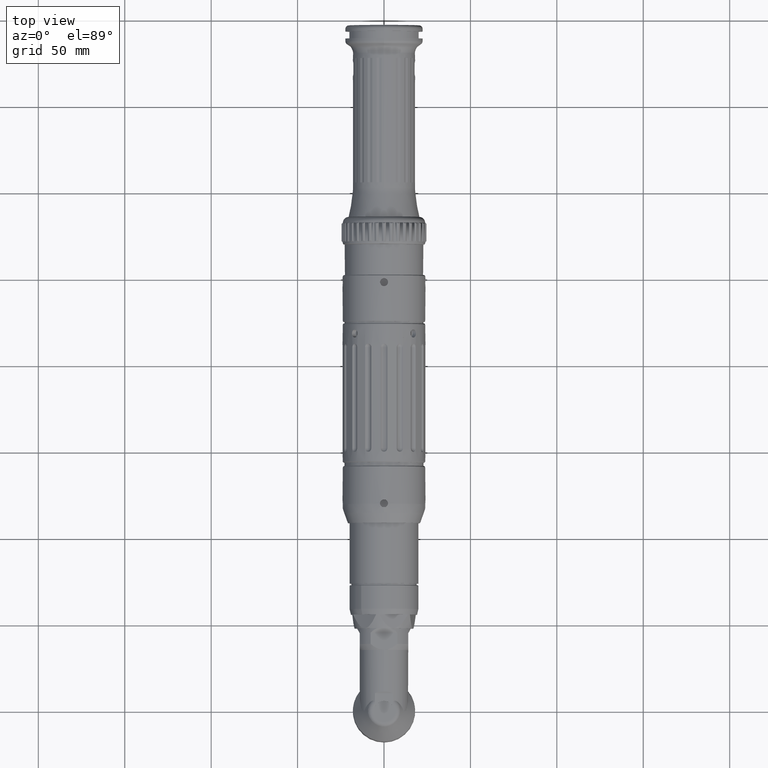
[diagram: clean part render]
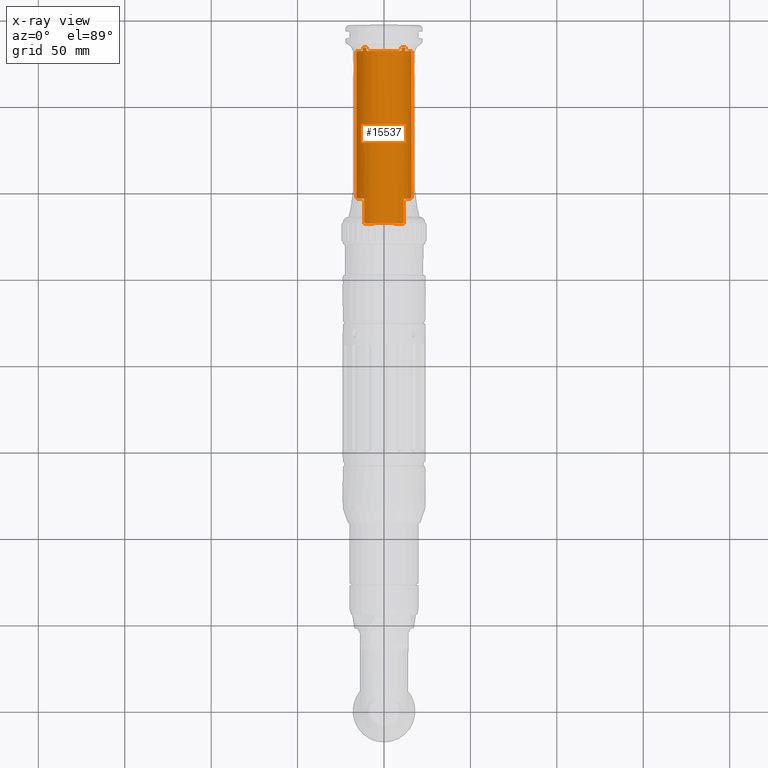
[diagram: x-ray — body ghosted, one internal face saturated and labeled with its STEP entity id]
A machine part, top view, then the same camera in x-ray: the body is ghosted and one INTERNAL B-rep face — a face not visible from any outside direction — is saturated and labeled: STEP entity #15537.
In plain terms, the highlighted cylindrical surface (bore or boss wall) has radius 16 mm, axis along (0, -1, -0).
Its self-contained STEP definition (entity closure, byte-faithful):
#102=ELLIPSE('',#16172,102.279251543994,16.);
#104=ELLIPSE('',#16174,102.279251543994,16.);
#140=ELLIPSE('',#16923,102.279251543994,16.);
#141=ELLIPSE('',#16924,102.279251543994,16.);
#334=B_SPLINE_CURVE_WITH_KNOTS('',3,(#22875,#22876,#22877,#22878,#22879,
#22880),.UNSPECIFIED.,.F.,.F.,(4,2,4),(1.60575531335487,1.70750990164224,
1.79006707795033),.UNSPECIFIED.);
#344=B_SPLINE_CURVE_WITH_KNOTS('',3,(#23152,#23153,#23154,#23155,#23156,
#23157),.UNSPECIFIED.,.F.,.F.,(4,2,4),(3.57354557210698,4.0081455047235,
4.44274543733987),.UNSPECIFIED.);
#345=B_SPLINE_CURVE_WITH_KNOTS('',3,(#23165,#23166,#23167,#23168,#23169,
#23170),.UNSPECIFIED.,.F.,.F.,(4,2,4),(-0.150361344986723,-0.111047292004061,
-0.0884233934386271),.UNSPECIFIED.);
#347=B_SPLINE_CURVE_WITH_KNOTS('',3,(#23215,#23216,#23217,#23218,#23219,
#23220,#23221,#23222,#23223,#23224),.UNSPECIFIED.,.F.,.F.,(4,2,2,2,4),(0.,
0.0381531620908622,0.0763063241817243,0.115442240555568,0.154578156929411),
 .UNSPECIFIED.);
#348=B_SPLINE_CURVE_WITH_KNOTS('',3,(#23236,#23237,#23238,#23239,#23240,
#23241,#23242,#23243,#23244,#23245),.UNSPECIFIED.,.F.,.F.,(4,2,2,2,4),(-0.154578156929414,
-0.11544224055557,-0.0763063241817251,-0.0381531620908626,0.),
 .UNSPECIFIED.);
#349=B_SPLINE_CURVE_WITH_KNOTS('',3,(#23293,#23294,#23295,#23296,#23297,
#23298,#23299,#23300,#23301,#23302),.UNSPECIFIED.,.F.,.F.,(4,2,2,2,4),(0.934707650493438,
1.05123163150248,1.16775561251153,1.28867704578371,1.40959847905589),
 .UNSPECIFIED.);
#353=B_SPLINE_CURVE_WITH_KNOTS('',3,(#23335,#23336,#23337,#23338,#23339,
#23340,#23341,#23342,#23343,#23344),.UNSPECIFIED.,.F.,.F.,(4,2,2,2,4),(-0.47484788603311,
-0.350995445796024,-0.227143005558937,-0.113571502779469,0.),
 .UNSPECIFIED.);
#409=B_SPLINE_CURVE_WITH_KNOTS('',3,(#24925,#24926,#24927,#24928,#24929,
#24930,#24931,#24932,#24933,#24934,#24935,#24936,#24937,#24938,#24939,#24940,
#24941,#24942,#24943,#24944,#24945,#24946,#24947,#24948,#24949,#24950,#24951,
#24952,#24953,#24954,#24955,#24956,#24957,#24958),.UNSPECIFIED.,.T.,.F.,
(4,2,2,2,2,2,2,2,2,2,2,2,2,2,2,2,4),(0.,0.0754224115710585,0.150844823142117,
0.226266604627874,0.301688386113631,0.377110167599387,0.452531949085144,
0.527954360656203,0.603376772227261,0.678799183798319,0.754221595369378,
0.829643376855136,0.905065158340895,0.980486939826654,1.05590872131241,
1.13133113288347,1.20675354445453),.UNSPECIFIED.);
#410=B_SPLINE_CURVE_WITH_KNOTS('',3,(#25147,#25148,#25149,#25150,#25151,
#25152,#25153,#25154,#25155,#25156,#25157,#25158,#25159,#25160,#25161,#25162,
#25163,#25164,#25165,#25166,#25167,#25168,#25169,#25170,#25171,#25172,#25173,
#25174,#25175,#25176,#25177,#25178,#25179,#25180),.UNSPECIFIED.,.T.,.F.,
(4,2,2,2,2,2,2,2,2,2,2,2,2,2,2,2,4),(0.,0.0754224115710584,0.150844823142117,
0.226266604627875,0.301688386113634,0.377110167599393,0.452531949085151,
0.52795436065621,0.603376772227268,0.678799183798327,0.754221595369385,
0.829643376855142,0.905065158340899,0.980486939826655,1.05590872131241,
1.13133113288347,1.20675354445453),.UNSPECIFIED.);
#411=B_SPLINE_CURVE_WITH_KNOTS('',3,(#25364,#25365,#25366,#25367,#25368,
#25369,#25370,#25371,#25372,#25373,#25374,#25375,#25376,#25377,#25378,#25379,
#25380,#25381,#25382,#25383,#25384,#25385,#25386,#25387,#25388,#25389,#25390,
#25391,#25392,#25393,#25394,#25395,#25396,#25397),.UNSPECIFIED.,.T.,.F.,
(4,2,2,2,2,2,2,2,2,2,2,2,2,2,2,2,4),(0.,0.0754224115710585,0.150844823142117,
0.226266604627873,0.30168838611363,0.377110167599387,0.452531949085144,
0.527954360656202,0.603376772227261,0.678799183798319,0.754221595369378,
0.829643376855137,0.905065158340896,0.980486939826654,1.05590872131241,
1.13133113288347,1.20675354445453),.UNSPECIFIED.);
#412=B_SPLINE_CURVE_WITH_KNOTS('',3,(#25633,#25634,#25635,#25636,#25637,
#25638),.UNSPECIFIED.,.F.,.F.,(4,2,4),(-0.0622957377690027,-0.0428726460111262,
-0.00023460614208895),.UNSPECIFIED.);
#415=B_SPLINE_CURVE_WITH_KNOTS('',3,(#25795,#25796,#25797,#25798,#25799,
#25800,#25801,#25802,#25803,#25804),.UNSPECIFIED.,.F.,.F.,(4,2,2,2,4),(-0.389804153258447,
-0.289329935856943,-0.18885571845544,-0.0944278592277199,0.),
 .UNSPECIFIED.);
#418=B_SPLINE_CURVE_WITH_KNOTS('',3,(#25927,#25928,#25929,#25930,#25931,
#25932,#25933,#25934,#25935,#25936),.UNSPECIFIED.,.F.,.F.,(4,2,2,2,4),(0.,
0.0961295553740424,0.192259110748085,0.291039373597876,0.389819636447666),
 .UNSPECIFIED.);
#421=B_SPLINE_CURVE_WITH_KNOTS('',3,(#26053,#26054,#26055,#26056,#26057,
#26058),.UNSPECIFIED.,.F.,.F.,(4,2,4),(3.7317463950236,4.13768239848054,
4.54361840193748),.UNSPECIFIED.);
#422=B_SPLINE_CURVE_WITH_KNOTS('',3,(#26117,#26118,#26119,#26120),
 .UNSPECIFIED.,.F.,.F.,(4,4),(-0.183481887365558,0.),.UNSPECIFIED.);
#1147=FACE_BOUND('',#4524,.T.);
#1148=FACE_BOUND('',#4525,.T.);
#1149=FACE_BOUND('',#4526,.T.);
#1150=FACE_BOUND('',#4527,.T.);
#1151=FACE_BOUND('',#4528,.T.);
#1152=FACE_BOUND('',#4529,.T.);
#1153=FACE_BOUND('',#4530,.T.);
#1154=FACE_BOUND('',#4531,.T.);
#1155=FACE_BOUND('',#4532,.T.);
#1156=FACE_BOUND('',#4533,.T.);
#1332=LINE('',#23188,#2199);
#1333=LINE('',#23192,#2200);
#1334=LINE('',#23197,#2201);
#1335=LINE('',#23201,#2202);
#1336=LINE('',#23206,#2203);
#1345=LINE('',#23251,#2212);
#1352=LINE('',#23274,#2219);
#1355=LINE('',#23285,#2222);
#1364=LINE('',#23371,#2231);
#1606=LINE('',#25600,#2473);
#1635=LINE('',#26111,#2502);
#1636=LINE('',#26116,#2503);
#1637=LINE('',#26123,#2504);
#1638=LINE('',#26127,#2505);
#1639=LINE('',#26131,#2506);
#1640=LINE('',#26135,#2507);
#1641=LINE('',#26139,#2508);
#1642=LINE('',#26143,#2509);
#1643=LINE('',#26147,#2510);
#1644=LINE('',#26151,#2511);
#2199=VECTOR('',#18227,10.);
#2200=VECTOR('',#18230,10.);
#2201=VECTOR('',#18235,10.);
#2202=VECTOR('',#18238,10.);
#2203=VECTOR('',#18243,10.);
#2212=VECTOR('',#18266,10.);
#2219=VECTOR('',#18285,10.);
#2222=VECTOR('',#18290,10.);
#2231=VECTOR('',#18311,10.);
#2473=VECTOR('',#19927,10.);
#2502=VECTOR('',#20114,10.);
#2503=VECTOR('',#20119,10.);
#2504=VECTOR('',#20120,10.);
#2505=VECTOR('',#20123,10.);
#2506=VECTOR('',#20126,10.);
#2507=VECTOR('',#20129,10.);
#2508=VECTOR('',#20132,10.);
#2509=VECTOR('',#20135,10.);
#2510=VECTOR('',#20138,10.);
#2511=VECTOR('',#20141,10.);
#3440=FACE_OUTER_BOUND('',#4523,.T.);
#4523=EDGE_LOOP('',(#11434,#11435,#11436,#11437,#11438,#11439,#11440,#11441,
#11442,#11443,#11444,#11445));
#4524=EDGE_LOOP('',(#11446,#11447,#11448,#11449,#11450,#11451,#11452,#11453,
#11454,#11455,#11456,#11457,#11458,#11459,#11460,#11461));
#4525=EDGE_LOOP('',(#11462));
#4526=EDGE_LOOP('',(#11463));
#4527=EDGE_LOOP('',(#11464));
#4528=EDGE_LOOP('',(#11465,#11466,#11467,#11468,#11469,#11470));
#4529=EDGE_LOOP('',(#11471,#11472));
#4530=EDGE_LOOP('',(#11473,#11474));
#4531=EDGE_LOOP('',(#11475,#11476));
#4532=EDGE_LOOP('',(#11477,#11478));
#4533=EDGE_LOOP('',(#11479,#11480,#11481,#11482,#11483,#11484,#11485,#11486,
#11487,#11488,#11489,#11490));
#5214=CIRCLE('',#16089,16.);
#5251=CIRCLE('',#16166,16.);
#5253=CIRCLE('',#16179,16.);
#5631=CIRCLE('',#16907,16.);
#5645=CIRCLE('',#16949,16.);
#5646=CIRCLE('',#16950,16.);
#5647=CIRCLE('',#16951,16.);
#5648=CIRCLE('',#16952,16.);
#5649=CIRCLE('',#16953,16.);
#5650=CIRCLE('',#16954,16.);
#5651=CIRCLE('',#16955,16.);
#5652=CIRCLE('',#16956,16.);
#5653=CIRCLE('',#16957,16.);
#5654=CIRCLE('',#16958,16.);
#6136=VERTEX_POINT('',#22842);
#6137=VERTEX_POINT('',#22844);
#6147=VERTEX_POINT('',#22873);
#6194=VERTEX_POINT('',#23150);
#6195=VERTEX_POINT('',#23151);
#6198=VERTEX_POINT('',#23164);
#6201=VERTEX_POINT('',#23186);
#6202=VERTEX_POINT('',#23187);
#6203=VERTEX_POINT('',#23189);
#6204=VERTEX_POINT('',#23191);
#6205=VERTEX_POINT('',#23195);
#6206=VERTEX_POINT('',#23196);
#6207=VERTEX_POINT('',#23198);
#6208=VERTEX_POINT('',#23200);
#6209=VERTEX_POINT('',#23204);
#6210=VERTEX_POINT('',#23205);
#6213=VERTEX_POINT('',#23214);
#6215=VERTEX_POINT('',#23229);
#6217=VERTEX_POINT('',#23235);
#6219=VERTEX_POINT('',#23250);
#6223=VERTEX_POINT('',#23260);
#6227=VERTEX_POINT('',#23268);
#6228=VERTEX_POINT('',#23272);
#6229=VERTEX_POINT('',#23273);
#6232=VERTEX_POINT('',#23283);
#6233=VERTEX_POINT('',#23284);
#6236=VERTEX_POINT('',#23292);
#6241=VERTEX_POINT('',#23328);
#6243=VERTEX_POINT('',#23334);
#6248=VERTEX_POINT('',#23370);
#6560=VERTEX_POINT('',#24924);
#6621=VERTEX_POINT('',#25146);
#6680=VERTEX_POINT('',#25363);
#6747=VERTEX_POINT('',#25599);
#6759=VERTEX_POINT('',#25632);
#6771=VERTEX_POINT('',#25794);
#6779=VERTEX_POINT('',#25873);
#6782=VERTEX_POINT('',#26052);
#6794=VERTEX_POINT('',#26110);
#6795=VERTEX_POINT('',#26113);
#6796=VERTEX_POINT('',#26115);
#6797=VERTEX_POINT('',#26121);
#6798=VERTEX_POINT('',#26122);
#6799=VERTEX_POINT('',#26124);
#6800=VERTEX_POINT('',#26126);
#6801=VERTEX_POINT('',#26128);
#6802=VERTEX_POINT('',#26130);
#6803=VERTEX_POINT('',#26132);
#6804=VERTEX_POINT('',#26134);
#6805=VERTEX_POINT('',#26136);
#6806=VERTEX_POINT('',#26138);
#6807=VERTEX_POINT('',#26140);
#6808=VERTEX_POINT('',#26142);
#6809=VERTEX_POINT('',#26144);
#6810=VERTEX_POINT('',#26146);
#6811=VERTEX_POINT('',#26148);
#6812=VERTEX_POINT('',#26150);
#7555=EDGE_CURVE('',#6137,#6136,#5214,.T.);
#7569=EDGE_CURVE('',#6147,#6136,#334,.T.);
#7635=EDGE_CURVE('',#6194,#6195,#344,.T.);
#7639=EDGE_CURVE('',#6195,#6198,#345,.T.);
#7643=EDGE_CURVE('',#6201,#6202,#1332,.T.);
#7645=EDGE_CURVE('',#6204,#6203,#1333,.T.);
#7647=EDGE_CURVE('',#6205,#6206,#1334,.T.);
#7649=EDGE_CURVE('',#6208,#6207,#1335,.T.);
#7651=EDGE_CURVE('',#6209,#6210,#1336,.T.);
#7656=EDGE_CURVE('',#6210,#6213,#347,.T.);
#7659=EDGE_CURVE('',#6213,#6215,#5251,.T.);
#7662=EDGE_CURVE('',#6215,#6217,#348,.T.);
#7665=EDGE_CURVE('',#6217,#6219,#1345,.T.);
#7670=EDGE_CURVE('',#6198,#6223,#102,.T.);
#7675=EDGE_CURVE('',#6227,#6209,#104,.T.);
#7676=EDGE_CURVE('',#6228,#6229,#1352,.T.);
#7680=EDGE_CURVE('',#6232,#6233,#1355,.T.);
#7684=EDGE_CURVE('',#6233,#6236,#349,.T.);
#7690=EDGE_CURVE('',#6236,#6241,#5253,.T.);
#7693=EDGE_CURVE('',#6241,#6243,#353,.T.);
#7699=EDGE_CURVE('',#6243,#6248,#1364,.T.);
#8125=EDGE_CURVE('',#6560,#6560,#409,.T.);
#8216=EDGE_CURVE('',#6621,#6621,#410,.T.);
#8305=EDGE_CURVE('',#6680,#6680,#411,.T.);
#8402=EDGE_CURVE('',#6747,#6227,#1606,.T.);
#8416=EDGE_CURVE('',#6759,#6194,#412,.T.);
#8438=EDGE_CURVE('',#6229,#6771,#415,.F.);
#8451=EDGE_CURVE('',#6779,#6771,#5631,.T.);
#8457=EDGE_CURVE('',#6779,#6747,#418,.F.);
#8466=EDGE_CURVE('',#6223,#6782,#421,.T.);
#8468=EDGE_CURVE('',#6782,#6759,#140,.T.);
#8469=EDGE_CURVE('',#6219,#6228,#141,.T.);
#8492=EDGE_CURVE('',#6794,#6147,#1635,.T.);
#8493=EDGE_CURVE('',#6794,#6248,#5645,.T.);
#8494=EDGE_CURVE('',#6232,#6795,#5646,.T.);
#8495=EDGE_CURVE('',#6796,#6795,#1636,.T.);
#8496=EDGE_CURVE('',#6137,#6796,#422,.T.);
#8497=EDGE_CURVE('',#6797,#6798,#1637,.T.);
#8498=EDGE_CURVE('',#6799,#6797,#5647,.T.);
#8499=EDGE_CURVE('',#6799,#6800,#1638,.T.);
#8500=EDGE_CURVE('',#6801,#6800,#5648,.T.);
#8501=EDGE_CURVE('',#6802,#6801,#1639,.T.);
#8502=EDGE_CURVE('',#6803,#6802,#5649,.T.);
#8503=EDGE_CURVE('',#6803,#6804,#1640,.T.);
#8504=EDGE_CURVE('',#6805,#6804,#5650,.T.);
#8505=EDGE_CURVE('',#6806,#6805,#1641,.T.);
#8506=EDGE_CURVE('',#6807,#6806,#5651,.T.);
#8507=EDGE_CURVE('',#6807,#6808,#1642,.T.);
#8508=EDGE_CURVE('',#6809,#6808,#5652,.T.);
#8509=EDGE_CURVE('',#6810,#6809,#1643,.T.);
#8510=EDGE_CURVE('',#6811,#6810,#5653,.T.);
#8511=EDGE_CURVE('',#6811,#6812,#1644,.T.);
#8512=EDGE_CURVE('',#6798,#6812,#5654,.T.);
#11434=ORIENTED_EDGE('',*,*,#7555,.T.);
#11435=ORIENTED_EDGE('',*,*,#7569,.F.);
#11436=ORIENTED_EDGE('',*,*,#8492,.F.);
#11437=ORIENTED_EDGE('',*,*,#8493,.T.);
#11438=ORIENTED_EDGE('',*,*,#7699,.F.);
#11439=ORIENTED_EDGE('',*,*,#7693,.F.);
#11440=ORIENTED_EDGE('',*,*,#7690,.F.);
#11441=ORIENTED_EDGE('',*,*,#7684,.F.);
#11442=ORIENTED_EDGE('',*,*,#7680,.F.);
#11443=ORIENTED_EDGE('',*,*,#8494,.T.);
#11444=ORIENTED_EDGE('',*,*,#8495,.F.);
#11445=ORIENTED_EDGE('',*,*,#8496,.F.);
#11446=ORIENTED_EDGE('',*,*,#8497,.F.);
#11447=ORIENTED_EDGE('',*,*,#8498,.F.);
#11448=ORIENTED_EDGE('',*,*,#8499,.T.);
#11449=ORIENTED_EDGE('',*,*,#8500,.F.);
#11450=ORIENTED_EDGE('',*,*,#8501,.F.);
#11451=ORIENTED_EDGE('',*,*,#8502,.F.);
#11452=ORIENTED_EDGE('',*,*,#8503,.T.);
#11453=ORIENTED_EDGE('',*,*,#8504,.F.);
#11454=ORIENTED_EDGE('',*,*,#8505,.F.);
#11455=ORIENTED_EDGE('',*,*,#8506,.F.);
#11456=ORIENTED_EDGE('',*,*,#8507,.T.);
#11457=ORIENTED_EDGE('',*,*,#8508,.F.);
#11458=ORIENTED_EDGE('',*,*,#8509,.F.);
#11459=ORIENTED_EDGE('',*,*,#8510,.F.);
#11460=ORIENTED_EDGE('',*,*,#8511,.T.);
#11461=ORIENTED_EDGE('',*,*,#8512,.F.);
#11462=ORIENTED_EDGE('',*,*,#8305,.F.);
#11463=ORIENTED_EDGE('',*,*,#8125,.F.);
#11464=ORIENTED_EDGE('',*,*,#8216,.F.);
#11465=ORIENTED_EDGE('',*,*,#8466,.F.);
#11466=ORIENTED_EDGE('',*,*,#7670,.F.);
#11467=ORIENTED_EDGE('',*,*,#7639,.F.);
#11468=ORIENTED_EDGE('',*,*,#7635,.F.);
#11469=ORIENTED_EDGE('',*,*,#8416,.F.);
#11470=ORIENTED_EDGE('',*,*,#8468,.F.);
#11471=ORIENTED_EDGE('',*,*,#7643,.T.);
#11472=ORIENTED_EDGE('',*,*,#7643,.F.);
#11473=ORIENTED_EDGE('',*,*,#7645,.T.);
#11474=ORIENTED_EDGE('',*,*,#7645,.F.);
#11475=ORIENTED_EDGE('',*,*,#7647,.T.);
#11476=ORIENTED_EDGE('',*,*,#7647,.F.);
#11477=ORIENTED_EDGE('',*,*,#7649,.T.);
#11478=ORIENTED_EDGE('',*,*,#7649,.F.);
#11479=ORIENTED_EDGE('',*,*,#8402,.F.);
#11480=ORIENTED_EDGE('',*,*,#8457,.F.);
#11481=ORIENTED_EDGE('',*,*,#8451,.T.);
#11482=ORIENTED_EDGE('',*,*,#8438,.F.);
#11483=ORIENTED_EDGE('',*,*,#7676,.F.);
#11484=ORIENTED_EDGE('',*,*,#8469,.F.);
#11485=ORIENTED_EDGE('',*,*,#7665,.F.);
#11486=ORIENTED_EDGE('',*,*,#7662,.F.);
#11487=ORIENTED_EDGE('',*,*,#7659,.F.);
#11488=ORIENTED_EDGE('',*,*,#7656,.F.);
#11489=ORIENTED_EDGE('',*,*,#7651,.F.);
#11490=ORIENTED_EDGE('',*,*,#7675,.F.);
#14075=CYLINDRICAL_SURFACE('',#16948,16.);
#15537=ADVANCED_FACE('',(#3440,#1147,#1148,#1149,#1150,#1151,#1152,#1153,
#1154,#1155,#1156),#14075,.T.);
#16089=AXIS2_PLACEMENT_3D('',#22845,#18059,#18060);
#16166=AXIS2_PLACEMENT_3D('',#23230,#18255,#18256);
#16172=AXIS2_PLACEMENT_3D('',#23261,#18274,#18275);
#16174=AXIS2_PLACEMENT_3D('',#23270,#18281,#18282);
#16179=AXIS2_PLACEMENT_3D('',#23329,#18300,#18301);
#16907=AXIS2_PLACEMENT_3D('',#25874,#20015,#20016);
#16923=AXIS2_PLACEMENT_3D('',#26061,#20050,#20051);
#16924=AXIS2_PLACEMENT_3D('',#26062,#20052,#20053);
#16948=AXIS2_PLACEMENT_3D('',#26109,#20112,#20113);
#16949=AXIS2_PLACEMENT_3D('',#26112,#20115,#20116);
#16950=AXIS2_PLACEMENT_3D('',#26114,#20117,#20118);
#16951=AXIS2_PLACEMENT_3D('',#26125,#20121,#20122);
#16952=AXIS2_PLACEMENT_3D('',#26129,#20124,#20125);
#16953=AXIS2_PLACEMENT_3D('',#26133,#20127,#20128);
#16954=AXIS2_PLACEMENT_3D('',#26137,#20130,#20131);
#16955=AXIS2_PLACEMENT_3D('',#26141,#20133,#20134);
#16956=AXIS2_PLACEMENT_3D('',#26145,#20136,#20137);
#16957=AXIS2_PLACEMENT_3D('',#26149,#20139,#20140);
#16958=AXIS2_PLACEMENT_3D('',#26152,#20142,#20143);
#18059=DIRECTION('center_axis',(-3.45661209178548E-15,1.,4.29730067144491E-16));
#18060=DIRECTION('ref_axis',(0.625,2.4401243537633E-15,-0.7806247497998));
#18227=DIRECTION('',(-4.38368021123952E-16,1.,-3.05064281519173E-16));
#18230=DIRECTION('',(-4.38368021123952E-16,1.,-3.05064281519173E-16));
#18235=DIRECTION('',(-4.38368021123952E-16,1.,-3.05064281519173E-16));
#18238=DIRECTION('',(-4.38368021123952E-16,1.,-3.05064281519173E-16));
#18243=DIRECTION('',(-4.38368021123952E-16,1.,-3.05064281519173E-16));
#18255=DIRECTION('center_axis',(-3.56763439424799E-15,1.,1.53528889646304E-16));
#18256=DIRECTION('ref_axis',(0.999910459189188,4.34246448320822E-16,-0.0133818385907245));
#18266=DIRECTION('',(4.38368021123952E-16,-1.,3.05064281519173E-16));
#18274=DIRECTION('center_axis',(-9.05881177033145E-16,0.156434465040231,
-0.987688340595138));
#18275=DIRECTION('ref_axis',(3.01559799863884E-16,-0.987688340595138,-0.156434465040231));
#18281=DIRECTION('center_axis',(-9.05881177033145E-16,0.156434465040231,
-0.987688340595138));
#18282=DIRECTION('ref_axis',(3.01559799863884E-16,-0.987688340595138,-0.156434465040231));
#18285=DIRECTION('',(-4.38368021123952E-16,1.,-3.05064281519173E-16));
#18290=DIRECTION('',(4.38368021123952E-16,-1.,3.05064281519173E-16));
#18300=DIRECTION('center_axis',(3.45661209178547E-15,-1.,4.28558219204865E-16));
#18301=DIRECTION('ref_axis',(0.999910459189188,4.34246448320822E-16,-0.0133818385907245));
#18311=DIRECTION('',(-4.38368021123952E-16,1.,-3.05064281519173E-16));
#19927=DIRECTION('',(4.38368021123952E-16,-1.,3.05064281519173E-16));
#20015=DIRECTION('center_axis',(-3.56763439424799E-15,1.,6.13005004540683E-17));
#20016=DIRECTION('ref_axis',(0.625,2.4401243537633E-15,-0.7806247497998));
#20050=DIRECTION('center_axis',(-9.05881177033145E-16,0.156434465040231,
-0.987688340595138));
#20051=DIRECTION('ref_axis',(3.01559799863884E-16,-0.987688340595138,-0.156434465040231));
#20052=DIRECTION('center_axis',(-9.05881177033145E-16,0.156434465040231,
-0.987688340595138));
#20053=DIRECTION('ref_axis',(3.01559799863884E-16,-0.987688340595138,-0.156434465040231));
#20112=DIRECTION('center_axis',(3.56763439424799E-15,-1.,-2.69467317571285E-16));
#20113=DIRECTION('ref_axis',(0.625,2.4401243537633E-15,-0.7806247497998));
#20114=DIRECTION('',(4.38368021123952E-16,-1.,3.05064281519173E-16));
#20115=DIRECTION('center_axis',(-3.45661209178547E-15,1.,-3.06093539290129E-16));
#20116=DIRECTION('ref_axis',(1.,3.45661209178547E-15,-3.13996916063988E-15));
#20117=DIRECTION('center_axis',(-3.45661209178547E-15,1.,-3.06093539290129E-16));
#20118=DIRECTION('ref_axis',(1.,3.45661209178547E-15,-3.13996916063988E-15));
#20119=DIRECTION('',(-4.38368021123952E-16,1.,-3.05064281519173E-16));
#20120=DIRECTION('',(3.57077291260411E-15,-1.,1.39896932915523E-15));
#20121=DIRECTION('center_axis',(-3.57077291260411E-15,1.,-1.39896932915523E-15));
#20122=DIRECTION('ref_axis',(-1.,-3.57077291260411E-15,3.52115323038312E-16));
#20123=DIRECTION('',(3.57077291260411E-15,-1.,1.39896932915523E-15));
#20124=DIRECTION('center_axis',(-3.45661209178547E-15,1.,-3.06093539290129E-16));
#20125=DIRECTION('ref_axis',(1.,3.45661209178547E-15,-3.13996916063988E-15));
#20126=DIRECTION('',(3.57077291260411E-15,-1.,1.39896932915523E-15));
#20127=DIRECTION('center_axis',(-3.57077291260411E-15,1.,-1.39896932915523E-15));
#20128=DIRECTION('ref_axis',(-1.,-3.57077291260411E-15,3.52115323038312E-16));
#20129=DIRECTION('',(3.57077291260411E-15,-1.,1.39896932915523E-15));
#20130=DIRECTION('center_axis',(-3.45661209178547E-15,1.,-3.06093539290129E-16));
#20131=DIRECTION('ref_axis',(1.,3.45661209178547E-15,-3.13996916063988E-15));
#20132=DIRECTION('',(3.57077291260411E-15,-1.,1.39896932915523E-15));
#20133=DIRECTION('center_axis',(-3.57077291260411E-15,1.,-1.39896932915523E-15));
#20134=DIRECTION('ref_axis',(-1.,-3.57077291260411E-15,3.52115323038312E-16));
#20135=DIRECTION('',(3.57077291260411E-15,-1.,1.39896932915523E-15));
#20136=DIRECTION('center_axis',(-3.45661209178547E-15,1.,-3.06093539290129E-16));
#20137=DIRECTION('ref_axis',(1.,3.45661209178547E-15,-3.13996916063988E-15));
#20138=DIRECTION('',(3.57077291260411E-15,-1.,1.39896932915523E-15));
#20139=DIRECTION('center_axis',(-3.57077291260411E-15,1.,-1.39896932915523E-15));
#20140=DIRECTION('ref_axis',(-1.,-3.57077291260411E-15,3.52115323038312E-16));
#20141=DIRECTION('',(3.57077291260411E-15,-1.,1.39896932915523E-15));
#20142=DIRECTION('center_axis',(-3.45661209178547E-15,1.,-3.06093539290129E-16));
#20143=DIRECTION('ref_axis',(1.,3.45661209178547E-15,-3.13996916063988E-15));
#22842=CARTESIAN_POINT('',(11.1647603382888,281.748996948237,11.4607210326652));
#22844=CARTESIAN_POINT('',(-11.1647603383079,281.74899694826,11.4607210326467));
#22845=CARTESIAN_POINT('Origin',(-8.52264525813097E-13,281.748996948227,
2.9957572386935E-13));
#22873=CARTESIAN_POINT('',(11.4999999999992,283.549,11.1242977306444));
#22875=CARTESIAN_POINT('Ctrl Pts',(11.4999999999992,283.549,11.1242977306444));
#22876=CARTESIAN_POINT('Ctrl Pts',(11.4999999999992,283.209818039042,11.1242977306444));
#22877=CARTESIAN_POINT('Ctrl Pts',(11.4650320707959,282.867952894746,11.1607644758731));
#22878=CARTESIAN_POINT('Ctrl Pts',(11.3403044987287,282.265490873797,11.2873304659547));
#22879=CARTESIAN_POINT('Ctrl Pts',(11.2622427375524,282.001625425361,11.3657560106673));
#22880=CARTESIAN_POINT('Ctrl Pts',(11.1647603382888,281.748996948247,11.4607210326652));
#23150=CARTESIAN_POINT('',(-4.50000000000088,287.128659502388,-15.3541525327838));
#23151=CARTESIAN_POINT('',(4.49999999999912,287.128659502388,-15.3541525327842));
#23152=CARTESIAN_POINT('Ctrl Pts',(-4.50000000000088,287.128659502388,-15.3541525327837));
#23153=CARTESIAN_POINT('Ctrl Pts',(-3.00488024121224,287.175736398095,-15.7923427162005));
#23154=CARTESIAN_POINT('Ctrl Pts',(-1.44866644205515,287.204819163124,-15.9999999999999));
#23155=CARTESIAN_POINT('Ctrl Pts',(1.44866644205449,287.204819163124,-15.9999999999999));
#23156=CARTESIAN_POINT('Ctrl Pts',(3.00488024121098,287.175736398095,-15.7923427162007));
#23157=CARTESIAN_POINT('Ctrl Pts',(4.49999999999912,287.128659502388,-15.3541525327842));
#23164=CARTESIAN_POINT('',(5.06271717785038,287.284477819246,-15.1779081159782));
#23165=CARTESIAN_POINT('Ctrl Pts',(4.49999999999912,287.128659502388,-15.3541525327842));
#23166=CARTESIAN_POINT('Ctrl Pts',(4.6258914872684,287.124695552088,-15.3172562148988));
#23167=CARTESIAN_POINT('Ctrl Pts',(4.75119416714097,287.144540988899,-15.2787923803937));
#23168=CARTESIAN_POINT('Ctrl Pts',(4.93708372389901,287.212606576348,-15.2194048891671));
#23169=CARTESIAN_POINT('Ctrl Pts',(5.00201100627893,287.245009700076,-15.1981571631642));
#23170=CARTESIAN_POINT('Ctrl Pts',(5.06271717785042,287.284477819246,-15.1779081159788));
#23186=CARTESIAN_POINT('',(-9.31926795549964E-13,302.499,-15.9999999999997));
#23187=CARTESIAN_POINT('',(-9.34959284785075E-13,303.349,-15.9999999999997));
#23188=CARTESIAN_POINT('',(-5.75905449785794E-14,249.949,-15.9999999999997));
#23189=CARTESIAN_POINT('',(-8.26871141879292E-14,307.199,-15.9999999999997));
#23191=CARTESIAN_POINT('',(-8.23145013699803E-14,306.349,-15.9999999999997));
#23192=CARTESIAN_POINT('',(-5.75905449785794E-14,249.949,-15.9999999999997));
#23195=CARTESIAN_POINT('',(-8.86796220462727E-13,289.849,-15.9999999999997));
#23196=CARTESIAN_POINT('',(-8.90363854856975E-13,290.849,-15.9999999999997));
#23197=CARTESIAN_POINT('',(-5.75905449785794E-14,249.949,-15.9999999999997));
#23198=CARTESIAN_POINT('',(-7.85883731904178E-14,297.849,-15.9999999999997));
#23200=CARTESIAN_POINT('',(-7.81500051692945E-14,296.849,-15.9999999999997));
#23201=CARTESIAN_POINT('',(-5.75905449785794E-14,249.949,-15.9999999999997));
#23204=CARTESIAN_POINT('',(5.49999999999912,288.250032985823,-15.0249792013169));
#23205=CARTESIAN_POINT('',(5.49999999999903,314.349,-15.024979201317));
#23206=CARTESIAN_POINT('',(5.49999999999926,249.949,-15.0249792013169));
#23214=CARTESIAN_POINT('',(4.49999999999902,315.349,-15.3541525327843));
#23215=CARTESIAN_POINT('Ctrl Pts',(5.49999999999903,314.349,-15.024979201317));
#23216=CARTESIAN_POINT('Ctrl Pts',(5.49999999999903,314.476177206969,-15.0249792013169));
#23217=CARTESIAN_POINT('Ctrl Pts',(5.47423229268427,314.611055347809,-15.0344858487828));
#23218=CARTESIAN_POINT('Ctrl Pts',(5.37144807338977,314.857310789999,-15.0715138422579));
#23219=CARTESIAN_POINT('Ctrl Pts',(5.29448417654915,314.968729385823,-15.0989064682519));
#23220=CARTESIAN_POINT('Ctrl Pts',(5.11747870711482,315.145734855257,-15.159828379306));
#23221=CARTESIAN_POINT('Ctrl Pts',(5.00472245957874,315.222488934616,-15.197679202093));
#23222=CARTESIAN_POINT('Ctrl Pts',(4.75858873770867,315.324120276681,-15.2765353811396));
#23223=CARTESIAN_POINT('Ctrl Pts',(4.62518725614784,315.349,-15.3174626111838));
#23224=CARTESIAN_POINT('Ctrl Pts',(4.49999999999903,315.349,-15.3541525327843));
#23229=CARTESIAN_POINT('',(-4.50000000000098,315.349,-15.3541525327837));
#23230=CARTESIAN_POINT('Origin',(-8.06259683914729E-14,315.349,9.23825493989999E-14));
#23235=CARTESIAN_POINT('',(-5.50000000000098,314.349,-15.0249792013163));
#23236=CARTESIAN_POINT('Ctrl Pts',(-4.50000000000097,315.349,-15.3541525327837));
#23237=CARTESIAN_POINT('Ctrl Pts',(-4.62518725614978,315.349,-15.3174626111832));
#23238=CARTESIAN_POINT('Ctrl Pts',(-4.75858873771061,315.324120276681,-15.276535381139));
#23239=CARTESIAN_POINT('Ctrl Pts',(-5.00472245958071,315.222488934616,-15.1976792020924));
#23240=CARTESIAN_POINT('Ctrl Pts',(-5.11747870711677,315.145734855257,-15.1598283793054));
#23241=CARTESIAN_POINT('Ctrl Pts',(-5.2944841765511,314.968729385823,-15.0989064682513));
#23242=CARTESIAN_POINT('Ctrl Pts',(-5.37144807339172,314.857310789998,-15.0715138422572));
#23243=CARTESIAN_POINT('Ctrl Pts',(-5.4742322926862,314.611055347809,-15.0344858487822));
#23244=CARTESIAN_POINT('Ctrl Pts',(-5.50000000000098,314.476177206969,-15.0249792013163));
#23245=CARTESIAN_POINT('Ctrl Pts',(-5.50000000000098,314.349,-15.0249792013163));
#23250=CARTESIAN_POINT('',(-5.50000000000088,288.250032985827,-15.0249792013163));
#23251=CARTESIAN_POINT('',(-5.50000000000075,249.949,-15.0249792013164));
#23260=CARTESIAN_POINT('',(4.19579251557326,285.629342061169,-15.4400558666818));
#23261=CARTESIAN_POINT('Origin',(-1.10331985310758E-13,383.114018176099,
7.17098628169746E-14));
#23268=CARTESIAN_POINT('',(6.99999999999911,292.274952542771,-14.3874945699385));
#23270=CARTESIAN_POINT('Origin',(-1.10331985310758E-13,383.114018176099,
7.17098628169746E-14));
#23272=CARTESIAN_POINT('',(-7.0000000000009,292.274952542776,-14.3874945699377));
#23273=CARTESIAN_POINT('',(-7.00000000000097,314.349,-14.3874945699378));
#23274=CARTESIAN_POINT('',(-7.00000000000074,249.949,-14.3874945699377));
#23283=CARTESIAN_POINT('',(-8.25000000000097,296.549,-13.7090298708548));
#23284=CARTESIAN_POINT('',(-8.25000000000093,286.949,-13.7090298708546));
#23285=CARTESIAN_POINT('',(-8.2500000000008,249.949,-13.7090298708546));
#23292=CARTESIAN_POINT('',(-5.25000000000093,283.949,-15.1141490001914));
#23293=CARTESIAN_POINT('Ctrl Pts',(-8.25000000000096,286.949,-13.7090298708546));
#23294=CARTESIAN_POINT('Ctrl Pts',(-8.25000000000096,286.56058672997,-13.7090298708546));
#23295=CARTESIAN_POINT('Ctrl Pts',(-8.1699844141185,286.152946092893,-13.7580358834791));
#23296=CARTESIAN_POINT('Ctrl Pts',(-7.85938867723971,285.415669177915,-13.9377977074791));
#23297=CARTESIAN_POINT('Ctrl Pts',(-7.62915105833985,285.085510371219,-14.0669983407933));
#23298=CARTESIAN_POINT('Ctrl Pts',(-7.10375945778656,284.560118770666,-14.3397168496268));
#23299=CARTESIAN_POINT('Ctrl Pts',(-6.76836691450041,284.331087418896,-14.5034677145497));
#23300=CARTESIAN_POINT('Ctrl Pts',(-6.03203495362683,284.025418987755,-14.8248413402601));
#23301=CARTESIAN_POINT('Ctrl Pts',(-5.63075511662438,283.949,-14.98189118255));
#23302=CARTESIAN_POINT('Ctrl Pts',(-5.25000000000094,283.949,-15.1141490001914));
#23328=CARTESIAN_POINT('',(5.24999999999909,283.949,-15.114149000192));
#23329=CARTESIAN_POINT('Origin',(-6.68612125281808E-14,283.949,1.01961567838702E-13));
#23334=CARTESIAN_POINT('',(8.24999999999908,286.949,-13.7090298708556));
#23335=CARTESIAN_POINT('Ctrl Pts',(5.24999999999908,283.949,-15.114149000192));
#23336=CARTESIAN_POINT('Ctrl Pts',(5.63998421578673,283.949,-14.9786853936827));
#23337=CARTESIAN_POINT('Ctrl Pts',(6.05023630634094,284.029106209873,-14.8176361751955));
#23338=CARTESIAN_POINT('Ctrl Pts',(6.80032059418895,284.348487803484,-14.4887315176154));
#23339=CARTESIAN_POINT('Ctrl Pts',(7.14052453005429,284.587528908822,-14.3214967922722));
#23340=CARTESIAN_POINT('Ctrl Pts',(7.65687354980042,285.123179882808,-14.051688550362));
#23341=CARTESIAN_POINT('Ctrl Pts',(7.87718063040777,285.448747978583,-13.9276501483856));
#23342=CARTESIAN_POINT('Ctrl Pts',(8.17391918138995,286.172128643239,-13.7555974001176));
#23343=CARTESIAN_POINT('Ctrl Pts',(8.24999999999911,286.570428324068,-13.7090298708556));
#23344=CARTESIAN_POINT('Ctrl Pts',(8.24999999999911,286.949,-13.7090298708556));
#23370=CARTESIAN_POINT('',(8.24999999999905,296.549,-13.7090298708549));
#23371=CARTESIAN_POINT('',(8.2499999999992,249.949,-13.7090298708555));
#24924=CARTESIAN_POINT('',(15.8745078663874,371.549000000023,2.00000000000016));
#24925=CARTESIAN_POINT('Ctrl Pts',(15.8745078663874,371.549000000023,2.00000000000017));
#24926=CARTESIAN_POINT('Ctrl Pts',(15.8745078663874,371.297591961453,2.00000000000016));
#24927=CARTESIAN_POINT('Ctrl Pts',(15.8810964899008,371.029607950862,1.94970213956461));
#24928=CARTESIAN_POINT('Ctrl Pts',(15.9048340676627,370.536928236268,1.74551349551462));
#24929=CARTESIAN_POINT('Ctrl Pts',(15.9216336684364,370.312209850964,1.59163697568694));
#24930=CARTESIAN_POINT('Ctrl Pts',(15.9531211010569,369.957364506547,1.23679163126999));
#24931=CARTESIAN_POINT('Ctrl Pts',(15.9698632499716,369.803486825491,1.01207260158646));
#24932=CARTESIAN_POINT('Ctrl Pts',(15.9934691817416,369.599297329679,0.519390705117405));
#24933=CARTESIAN_POINT('Ctrl Pts',(15.9999999999999,369.549000000023,0.251405938286016));
#24934=CARTESIAN_POINT('Ctrl Pts',(15.9999999999999,369.549000000023,-0.251405938285696));
#24935=CARTESIAN_POINT('Ctrl Pts',(15.9934691817416,369.599297329679,-0.519390705117085));
#24936=CARTESIAN_POINT('Ctrl Pts',(15.9698632499716,369.803486825491,-1.01207260158614));
#24937=CARTESIAN_POINT('Ctrl Pts',(15.9531211010569,369.957364506547,-1.23679163126967));
#24938=CARTESIAN_POINT('Ctrl Pts',(15.9216336684365,370.312209850964,-1.59163697568662));
#24939=CARTESIAN_POINT('Ctrl Pts',(15.9048340676627,370.536928236268,-1.74551349551433));
#24940=CARTESIAN_POINT('Ctrl Pts',(15.8810964899009,371.029607950862,-1.9497021395643));
#24941=CARTESIAN_POINT('Ctrl Pts',(15.8745078663875,371.297591961453,-1.99999999999984));
#24942=CARTESIAN_POINT('Ctrl Pts',(15.8745078663875,371.800408038593,-1.99999999999984));
#24943=CARTESIAN_POINT('Ctrl Pts',(15.8810964899009,372.068392049184,-1.94970213956431));
#24944=CARTESIAN_POINT('Ctrl Pts',(15.9048340676627,372.561071763777,-1.74551349551433));
#24945=CARTESIAN_POINT('Ctrl Pts',(15.9216336684365,372.785790149082,-1.59163697568663));
#24946=CARTESIAN_POINT('Ctrl Pts',(15.9531211010569,373.140635493499,-1.23679163126967));
#24947=CARTESIAN_POINT('Ctrl Pts',(15.9698632499716,373.294513174555,-1.01207260158614));
#24948=CARTESIAN_POINT('Ctrl Pts',(15.9934691817416,373.498702670367,-0.51939070511707));
#24949=CARTESIAN_POINT('Ctrl Pts',(15.9999999999999,373.549000000023,-0.251405938285698));
#24950=CARTESIAN_POINT('Ctrl Pts',(15.9999999999999,373.549000000023,0.251405938286026));
#24951=CARTESIAN_POINT('Ctrl Pts',(15.9934691817416,373.498702670367,0.519390705117404));
#24952=CARTESIAN_POINT('Ctrl Pts',(15.9698632499716,373.294513174555,1.01207260158647));
#24953=CARTESIAN_POINT('Ctrl Pts',(15.9531211010569,373.140635493499,1.23679163127));
#24954=CARTESIAN_POINT('Ctrl Pts',(15.9216336684364,372.785790149082,1.59163697568695));
#24955=CARTESIAN_POINT('Ctrl Pts',(15.9048340676627,372.561071763777,1.74551349551465));
#24956=CARTESIAN_POINT('Ctrl Pts',(15.8810964899008,372.068392049184,1.94970213956463));
#24957=CARTESIAN_POINT('Ctrl Pts',(15.8745078663874,371.800408038593,2.00000000000017));
#24958=CARTESIAN_POINT('Ctrl Pts',(15.8745078663874,371.549000000023,2.00000000000017));
#25146=CARTESIAN_POINT('',(-15.8745078663877,371.549000000023,-1.99999999999979));
#25147=CARTESIAN_POINT('Ctrl Pts',(-15.8745078663877,371.549000000023,-1.99999999999979));
#25148=CARTESIAN_POINT('Ctrl Pts',(-15.8745078663877,371.297591961453,-1.99999999999979));
#25149=CARTESIAN_POINT('Ctrl Pts',(-15.8810964899011,371.029607950862,-1.94970213956425));
#25150=CARTESIAN_POINT('Ctrl Pts',(-15.904834067663,370.536928236268,-1.74551349551427));
#25151=CARTESIAN_POINT('Ctrl Pts',(-15.9216336684367,370.312209850964,-1.59163697568657));
#25152=CARTESIAN_POINT('Ctrl Pts',(-15.9531211010571,369.957364506547,-1.23679163126962));
#25153=CARTESIAN_POINT('Ctrl Pts',(-15.9698632499718,369.803486825491,-1.01207260158609));
#25154=CARTESIAN_POINT('Ctrl Pts',(-15.9934691817418,369.599297329679,-0.519390705117027));
#25155=CARTESIAN_POINT('Ctrl Pts',(-16.0000000000001,369.549000000023,-0.251405938285649));
#25156=CARTESIAN_POINT('Ctrl Pts',(-16.0000000000001,369.549000000023,0.251405938286076));
#25157=CARTESIAN_POINT('Ctrl Pts',(-15.9934691817418,369.599297329679,0.519390705117454));
#25158=CARTESIAN_POINT('Ctrl Pts',(-15.9698632499718,369.803486825491,1.01207260158652));
#25159=CARTESIAN_POINT('Ctrl Pts',(-15.9531211010571,369.957364506547,1.23679163127005));
#25160=CARTESIAN_POINT('Ctrl Pts',(-15.9216336684366,370.312209850964,1.591636975687));
#25161=CARTESIAN_POINT('Ctrl Pts',(-15.9048340676629,370.536928236268,1.74551349551471));
#25162=CARTESIAN_POINT('Ctrl Pts',(-15.881096489901,371.029607950862,1.94970213956468));
#25163=CARTESIAN_POINT('Ctrl Pts',(-15.8745078663876,371.297591961453,2.00000000000022));
#25164=CARTESIAN_POINT('Ctrl Pts',(-15.8745078663876,371.800408038593,2.00000000000021));
#25165=CARTESIAN_POINT('Ctrl Pts',(-15.881096489901,372.068392049184,1.94970213956465));
#25166=CARTESIAN_POINT('Ctrl Pts',(-15.9048340676629,372.561071763777,1.74551349551465));
#25167=CARTESIAN_POINT('Ctrl Pts',(-15.9216336684366,372.785790149082,1.591636975687));
#25168=CARTESIAN_POINT('Ctrl Pts',(-15.9531211010571,373.140635493499,1.23679163127005));
#25169=CARTESIAN_POINT('Ctrl Pts',(-15.9698632499718,373.294513174555,1.01207260158651));
#25170=CARTESIAN_POINT('Ctrl Pts',(-15.9934691817418,373.498702670367,0.519390705117478));
#25171=CARTESIAN_POINT('Ctrl Pts',(-16.0000000000001,373.549000000023,0.251405938286075));
#25172=CARTESIAN_POINT('Ctrl Pts',(-16.0000000000001,373.549000000023,-0.251405938285636));
#25173=CARTESIAN_POINT('Ctrl Pts',(-15.9934691817418,373.498702670367,-0.519390705117026));
#25174=CARTESIAN_POINT('Ctrl Pts',(-15.9698632499718,373.294513174555,-1.01207260158608));
#25175=CARTESIAN_POINT('Ctrl Pts',(-15.9531211010571,373.140635493499,-1.23679163126961));
#25176=CARTESIAN_POINT('Ctrl Pts',(-15.9216336684367,372.785790149082,-1.59163697568656));
#25177=CARTESIAN_POINT('Ctrl Pts',(-15.904834067663,372.561071763777,-1.74551349551428));
#25178=CARTESIAN_POINT('Ctrl Pts',(-15.8810964899011,372.068392049183,-1.94970213956425));
#25179=CARTESIAN_POINT('Ctrl Pts',(-15.8745078663877,371.800408038593,-1.99999999999978));
#25180=CARTESIAN_POINT('Ctrl Pts',(-15.8745078663877,371.549000000023,-1.99999999999978));
#25363=CARTESIAN_POINT('',(1.99999999999915,363.549000000021,-15.8745078663876));
#25364=CARTESIAN_POINT('Ctrl Pts',(1.99999999999915,363.549000000021,-15.8745078663876));
#25365=CARTESIAN_POINT('Ctrl Pts',(1.99999999999915,363.297591961451,-15.8745078663876));
#25366=CARTESIAN_POINT('Ctrl Pts',(1.94970213956359,363.02960795086,-15.881096489901));
#25367=CARTESIAN_POINT('Ctrl Pts',(1.74551349551359,362.536928236266,-15.9048340676629));
#25368=CARTESIAN_POINT('Ctrl Pts',(1.59163697568593,362.312209850961,-15.9216336684366));
#25369=CARTESIAN_POINT('Ctrl Pts',(1.23679163126898,361.957364506544,-15.953121101057));
#25370=CARTESIAN_POINT('Ctrl Pts',(1.01207260158543,361.803486825489,-15.9698632499717));
#25371=CARTESIAN_POINT('Ctrl Pts',(0.519390705116372,361.599297329677,-15.9934691817416));
#25372=CARTESIAN_POINT('Ctrl Pts',(0.251405938285008,361.549000000021,-15.9999999999999));
#25373=CARTESIAN_POINT('Ctrl Pts',(-0.251405938286703,361.549000000021,
-15.9999999999999));
#25374=CARTESIAN_POINT('Ctrl Pts',(-0.519390705118068,361.599297329677,
-15.9934691817416));
#25375=CARTESIAN_POINT('Ctrl Pts',(-1.01207260158712,361.803486825489,-15.9698632499716));
#25376=CARTESIAN_POINT('Ctrl Pts',(-1.23679163127068,361.957364506544,-15.9531211010569));
#25377=CARTESIAN_POINT('Ctrl Pts',(-1.59163697568763,362.312209850961,-15.9216336684364));
#25378=CARTESIAN_POINT('Ctrl Pts',(-1.74551349551529,362.536928236266,-15.9048340676627));
#25379=CARTESIAN_POINT('Ctrl Pts',(-1.94970213956529,363.02960795086,-15.8810964899008));
#25380=CARTESIAN_POINT('Ctrl Pts',(-2.00000000000085,363.297591961451,-15.8745078663874));
#25381=CARTESIAN_POINT('Ctrl Pts',(-2.00000000000085,363.800408038591,-15.8745078663874));
#25382=CARTESIAN_POINT('Ctrl Pts',(-1.94970213956533,364.068392049181,-15.8810964899008));
#25383=CARTESIAN_POINT('Ctrl Pts',(-1.74551349551536,364.561071763775,-15.9048340676627));
#25384=CARTESIAN_POINT('Ctrl Pts',(-1.59163697568764,364.78579014908,-15.9216336684364));
#25385=CARTESIAN_POINT('Ctrl Pts',(-1.23679163127069,365.140635493497,-15.9531211010569));
#25386=CARTESIAN_POINT('Ctrl Pts',(-1.01207260158718,365.294513174553,-15.9698632499716));
#25387=CARTESIAN_POINT('Ctrl Pts',(-0.51939070511811,365.498702670365,-15.9934691817416));
#25388=CARTESIAN_POINT('Ctrl Pts',(-0.251405938286713,365.549000000021,
-15.9999999999999));
#25389=CARTESIAN_POINT('Ctrl Pts',(0.251405938285012,365.549000000021,-15.9999999999999));
#25390=CARTESIAN_POINT('Ctrl Pts',(0.519390705116409,365.498702670365,-15.9934691817416));
#25391=CARTESIAN_POINT('Ctrl Pts',(1.01207260158548,365.294513174553,-15.9698632499717));
#25392=CARTESIAN_POINT('Ctrl Pts',(1.23679163126899,365.140635493497,-15.953121101057));
#25393=CARTESIAN_POINT('Ctrl Pts',(1.59163697568594,364.78579014908,-15.9216336684366));
#25394=CARTESIAN_POINT('Ctrl Pts',(1.7455134955137,364.561071763775,-15.9048340676628));
#25395=CARTESIAN_POINT('Ctrl Pts',(1.94970213956365,364.068392049181,-15.881096489901));
#25396=CARTESIAN_POINT('Ctrl Pts',(1.99999999999915,363.800408038591,-15.8745078663876));
#25397=CARTESIAN_POINT('Ctrl Pts',(1.99999999999915,363.549000000021,-15.8745078663876));
#25599=CARTESIAN_POINT('',(6.99999999999904,314.349,-14.3874945699378));
#25600=CARTESIAN_POINT('',(6.99999999999926,249.949,-14.3874945699384));
#25632=CARTESIAN_POINT('',(-5.06271717784977,287.284477819244,-15.1779081159785));
#25633=CARTESIAN_POINT('Ctrl Pts',(-5.0627171778498,287.284477819244,-15.177908115979));
#25634=CARTESIAN_POINT('Ctrl Pts',(-5.01073061905543,287.250678756569,-15.1952486639791));
#25635=CARTESIAN_POINT('Ctrl Pts',(-4.95559670569635,287.222027424601,-15.2133398732041));
#25636=CARTESIAN_POINT('Ctrl Pts',(-4.77185449581421,287.147992808212,-15.2724257505234));
#25637=CARTESIAN_POINT('Ctrl Pts',(-4.63631614286942,287.12436731054,-15.314200953457));
#25638=CARTESIAN_POINT('Ctrl Pts',(-4.50000000000088,287.128659502388,-15.3541525327837));
#25794=CARTESIAN_POINT('',(-4.50000000000098,316.849,-15.3541525327838));
#25795=CARTESIAN_POINT('Ctrl Pts',(-4.50000000000098,316.849,-15.3541525327838));
#25796=CARTESIAN_POINT('Ctrl Pts',(-4.8213950957499,316.849,-15.2599579539699));
#25797=CARTESIAN_POINT('Ctrl Pts',(-5.16104655851395,316.783573411126,-15.1483760940406));
#25798=CARTESIAN_POINT('Ctrl Pts',(-5.78351780041913,316.520799289163,-14.9218169714051));
#25799=CARTESIAN_POINT('Ctrl Pts',(-6.06655404119438,316.323564324702,-14.8073041783419));
#25800=CARTESIAN_POINT('Ctrl Pts',(-6.50101945289903,315.877690212878,-14.6215305139662));
#25801=CARTESIAN_POINT('Ctrl Pts',(-6.6872703162902,315.603387154876,-14.5361424807449));
#25802=CARTESIAN_POINT('Ctrl Pts',(-6.9368668328838,314.996547551061,-14.4186997212171));
#25803=CARTESIAN_POINT('Ctrl Pts',(-7.00000000000098,314.663759530759,-14.3874945699378));
#25804=CARTESIAN_POINT('Ctrl Pts',(-7.00000000000097,314.349,-14.3874945699378));
#25873=CARTESIAN_POINT('',(4.49999999999902,316.849,-15.3541525327838));
#25874=CARTESIAN_POINT('Origin',(-9.7748850393881E-13,316.849,3.10952652515794E-13));
#25927=CARTESIAN_POINT('Ctrl Pts',(6.99999999999903,314.349,-14.3874945699379));
#25928=CARTESIAN_POINT('Ctrl Pts',(6.99999999999903,314.669431851247,-14.3874945699379));
#25929=CARTESIAN_POINT('Ctrl Pts',(6.93460298310164,315.007702326083,-14.4198321108591));
#25930=CARTESIAN_POINT('Ctrl Pts',(6.67686100895206,315.622757207769,-14.5409698116178));
#25931=CARTESIAN_POINT('Ctrl Pts',(6.48472737957332,315.899806526358,-14.6288726687045));
#25932=CARTESIAN_POINT('Ctrl Pts',(6.04482398932695,316.339709916605,-14.8161674021241));
#25933=CARTESIAN_POINT('Ctrl Pts',(5.76463410701246,316.531032602855,-14.9290241989833));
#25934=CARTESIAN_POINT('Ctrl Pts',(5.15031204312456,316.785731435507,-15.1519324104653));
#25935=CARTESIAN_POINT('Ctrl Pts',(4.81597650479572,316.849,-15.2615460363621));
#25936=CARTESIAN_POINT('Ctrl Pts',(4.49999999999902,316.849,-15.3541525327838));
#26052=CARTESIAN_POINT('',(-4.1957925155734,285.629342061169,-15.4400558666818));
#26053=CARTESIAN_POINT('Ctrl Pts',(4.19579251557325,285.629342061169,-15.4400558666818));
#26054=CARTESIAN_POINT('Ctrl Pts',(2.79544799314527,285.669350976203,-15.8205956210169));
#26055=CARTESIAN_POINT('Ctrl Pts',(1.35312001152307,285.693066389092,-15.9999999999999));
#26056=CARTESIAN_POINT('Ctrl Pts',(-1.35312001152322,285.693066389092,-15.9999999999999));
#26057=CARTESIAN_POINT('Ctrl Pts',(-2.79544799314542,285.669350976203,-15.8205956210169));
#26058=CARTESIAN_POINT('Ctrl Pts',(-4.1957925155734,285.629342061169,-15.4400558666818));
#26061=CARTESIAN_POINT('Origin',(-1.10331985310758E-13,383.114018176099,
7.17098628169746E-14));
#26062=CARTESIAN_POINT('Origin',(-1.10331985310758E-13,383.114018176099,
7.17098628169746E-14));
#26109=CARTESIAN_POINT('Origin',(-9.88191407121554E-13,319.849,3.09842429491169E-13));
#26110=CARTESIAN_POINT('',(11.4999999999991,296.549,11.1242977306437));
#26111=CARTESIAN_POINT('',(11.4999999999993,249.949,11.1242977306443));
#26112=CARTESIAN_POINT('Origin',(-9.15834689074439E-13,296.549,3.10265062471476E-13));
#26113=CARTESIAN_POINT('',(-11.5000000000009,296.549,11.1242977306438));
#26114=CARTESIAN_POINT('Origin',(-9.15834689074439E-13,296.549,3.10265062471476E-13));
#26115=CARTESIAN_POINT('',(-11.5000000000008,283.549,11.1242977306428));
#26116=CARTESIAN_POINT('',(-11.5000000000007,249.949,11.1242977306429));
#26117=CARTESIAN_POINT('Ctrl Pts',(-11.1647603383079,281.748996948292,11.4607210326467));
#26118=CARTESIAN_POINT('Ctrl Pts',(-11.3825088314579,282.313298510786,11.2485956582377));
#26119=CARTESIAN_POINT('Ctrl Pts',(-11.5000000000008,282.937393708781,11.1242977306428));
#26120=CARTESIAN_POINT('Ctrl Pts',(-11.5000000000008,283.549,11.1242977306428));
#26121=CARTESIAN_POINT('',(-12.3245404978496,383.549,-10.2032201542888));
#26122=CARTESIAN_POINT('',(-12.3245404978499,381.549,-10.2032201542887));
#26123=CARTESIAN_POINT('',(-12.3245404978496,383.549,-10.2032201542888));
#26124=CARTESIAN_POINT('',(-10.2032201542899,383.549,-12.3245404978485));
#26125=CARTESIAN_POINT('Origin',(-9.20038908060674E-13,383.549,1.76533097146455E-13));
#26126=CARTESIAN_POINT('',(-10.2032201542902,381.549,-12.3245404978483));
#26127=CARTESIAN_POINT('',(-10.2032201542899,383.549,-12.3245404978485));
#26128=CARTESIAN_POINT('',(10.2032201542877,381.549,-12.3245404978484));
#26129=CARTESIAN_POINT('Origin',(-1.2096467168762E-12,381.549,2.84247111631815E-13));
#26130=CARTESIAN_POINT('',(10.2032201542881,383.549,-12.3245404978485));
#26131=CARTESIAN_POINT('',(10.2032201542881,383.549,-12.3245404978485));
#26132=CARTESIAN_POINT('',(12.3245404978477,383.549,-10.2032201542888));
#26133=CARTESIAN_POINT('Origin',(-9.20038908060674E-13,383.549,1.76533097146455E-13));
#26134=CARTESIAN_POINT('',(12.3245404978474,381.549,-10.2032201542887));
#26135=CARTESIAN_POINT('',(12.3245404978477,383.549,-10.2032201542888));
#26136=CARTESIAN_POINT('',(12.3245404978474,381.549,10.2032201542892));
#26137=CARTESIAN_POINT('Origin',(-1.2096467168762E-12,381.549,2.84247111631815E-13));
#26138=CARTESIAN_POINT('',(12.3245404978477,383.549,10.2032201542892));
#26139=CARTESIAN_POINT('',(12.3245404978477,383.549,10.2032201542892));
#26140=CARTESIAN_POINT('',(10.2032201542881,383.549,12.3245404978488));
#26141=CARTESIAN_POINT('Origin',(-9.20038908060674E-13,383.549,1.76533097146455E-13));
#26142=CARTESIAN_POINT('',(10.2032201542878,381.549,12.3245404978489));
#26143=CARTESIAN_POINT('',(10.2032201542881,383.549,12.3245404978488));
#26144=CARTESIAN_POINT('',(-10.2032201542901,381.549,12.3245404978489));
#26145=CARTESIAN_POINT('Origin',(-1.2096467168762E-12,381.549,2.84247111631815E-13));
#26146=CARTESIAN_POINT('',(-10.2032201542899,383.549,12.3245404978488));
#26147=CARTESIAN_POINT('',(-10.2032201542899,383.549,12.3245404978488));
#26148=CARTESIAN_POINT('',(-12.3245404978496,383.549,10.2032201542892));
#26149=CARTESIAN_POINT('Origin',(-9.20038908060674E-13,383.549,1.76533097146455E-13));
#26150=CARTESIAN_POINT('',(-12.3245404978498,381.549,10.2032201542893));
#26151=CARTESIAN_POINT('',(-12.3245404978496,383.549,10.2032201542892));
#26152=CARTESIAN_POINT('Origin',(-1.2096467168762E-12,381.549,2.84247111631815E-13));